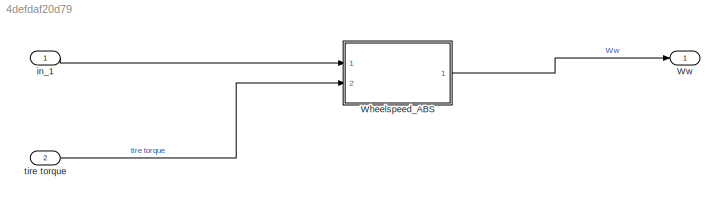
MODEL slx_4defdaf20d79
KIND model
CONFIG AbsTol = 1e-6
CONFIG EnableMultiTasking = off
CONFIG FixedStep = auto
CONFIG MaxStep = .01
CONFIG MinStep = auto
CONFIG RelTol = 1e-3
CONFIG SampleTimeConstraint = Unconstrained
CONFIG SolverName = ode45
CONFIG StartTime = 0.0
CONFIG StopTime = 25
WORKSPACE source: mxarray member
WORKSPACE I = 5
WORKSPACE Kf = 1
WORKSPACE PBmax = 1500
WORKSPACE Rr = 1.25
WORKSPACE TB = 0.01
WORKSPACE v0 = 88
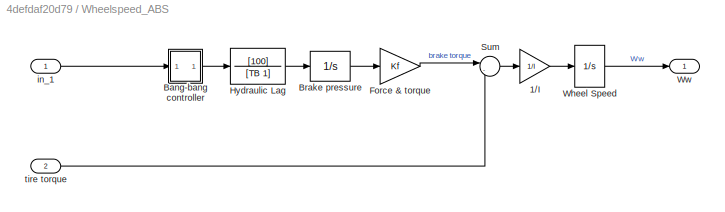
BLOCK [SubSystem] Wheelspeed_ABS
  Ports = [2, 1]
  RequestExecContextInheritance = off
BLOCK [Gain] Wheelspeed_ABS/1//I
  Gain = 1/I
  OutDataTypeStr = Inherit: Same as input
  ParamDataTypeStr = Inherit: Same as input
  SaturateOnIntegerOverflow = on
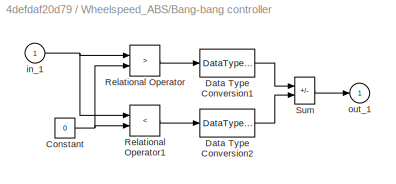
BLOCK [SubSystem] Wheelspeed_ABS/Bang-bang controller
  Ports = [1, 1]
  RequestExecContextInheritance = off
  ShowPortLabels = none
BLOCK [Constant] Wheelspeed_ABS/Bang-bang controller/Constant
  Value = 0
BLOCK [DataTypeConversion] Wheelspeed_ABS/Bang-bang controller/Data Type Conversion1
  OutDataTypeStr = double
BLOCK [DataTypeConversion] Wheelspeed_ABS/Bang-bang controller/Data Type Conversion2
  OutDataTypeStr = double
BLOCK [RelationalOperator] Wheelspeed_ABS/Bang-bang controller/Relational Operator
  Operator = >
  OutDataTypeStr = boolean
  Ports = [2, 1]
BLOCK [RelationalOperator] Wheelspeed_ABS/Bang-bang controller/Relational Operator1
  Operator = <
  OutDataTypeStr = boolean
  Ports = [2, 1]
BLOCK [Sum] Wheelspeed_ABS/Bang-bang controller/Sum
  IconShape = rectangular
  InputSameDT = on
  Inputs = +-
  OutDataTypeStr = Inherit: Same as first input
  Ports = [2, 1]
  SaturateOnIntegerOverflow = on
BLOCK [Inport] Wheelspeed_ABS/Bang-bang controller/in_1
BLOCK [Outport] Wheelspeed_ABS/Bang-bang controller/out_1
  InitialOutput = 0
  VectorParamsAs1DForOutWhenUnconnected = off
BLOCK [Integrator] Wheelspeed_ABS/Brake pressure
  LimitOutput = on
  LowerSaturationLimit = 0
  Ports = [1, 1]
  UpperSaturationLimit = PBmax
BLOCK [Gain] Wheelspeed_ABS/Force & torque
  Gain = Kf
  OutDataTypeStr = Inherit: Same as input
  ParamDataTypeStr = Inherit: Same as input
  SaturateOnIntegerOverflow = on
BLOCK [TransferFcn] Wheelspeed_ABS/Hydraulic Lag 
  Denominator = [TB 1]
  Numerator = [100]
BLOCK [Sum] Wheelspeed_ABS/Sum
  InputSameDT = on
  Inputs = |-+
  OutDataTypeStr = Inherit: Same as first input
  Ports = [2, 1]
  SaturateOnIntegerOverflow = on
BLOCK [Integrator] Wheelspeed_ABS/Wheel Speed
  InitialCondition = v0/Rr
  LimitOutput = on
  LowerSaturationLimit = 0
  Ports = [1, 1]
  UpperSaturationLimit = 1000
BLOCK [Outport] Wheelspeed_ABS/Ww
BLOCK [Inport] Wheelspeed_ABS/in_1
BLOCK [Inport] Wheelspeed_ABS/tire torque
  Port = 2
BLOCK [Outport] Ww
  OutDataTypeStr = double
  PortDimensions = 1
  SampleTime = 0
  SamplingMode = Sample based
  SignalType = real
BLOCK [Inport] in_1
  OutDataTypeStr = double
  PortDimensions = 1
  SampleTime = 0
  SamplingMode = Sample based
  SignalType = real
BLOCK [Inport] tire torque
  OutDataTypeStr = double
  Port = 2
  PortDimensions = 1
  SampleTime = 0
  SamplingMode = Sample based
  SignalType = real
LINE Wheelspeed_ABS/1//I:1 -> Wheelspeed_ABS/Wheel Speed:1
NET Wheelspeed_ABS/Bang-bang controller/Constant:1 -> Wheelspeed_ABS/Bang-bang controller/Relational Operator1:2, Wheelspeed_ABS/Bang-bang controller/Relational Operator:2
LINE Wheelspeed_ABS/Bang-bang controller/Data Type Conversion1:1 -> Wheelspeed_ABS/Bang-bang controller/Sum:1
LINE Wheelspeed_ABS/Bang-bang controller/Data Type Conversion2:1 -> Wheelspeed_ABS/Bang-bang controller/Sum:2
LINE Wheelspeed_ABS/Bang-bang controller/Relational Operator1:1 -> Wheelspeed_ABS/Bang-bang controller/Data Type Conversion2:1
LINE Wheelspeed_ABS/Bang-bang controller/Relational Operator:1 -> Wheelspeed_ABS/Bang-bang controller/Data Type Conversion1:1
LINE Wheelspeed_ABS/Bang-bang controller/Sum:1 -> Wheelspeed_ABS/Bang-bang controller/out_1:1
NET Wheelspeed_ABS/Bang-bang controller/in_1:1 -> Wheelspeed_ABS/Bang-bang controller/Relational Operator1:1, Wheelspeed_ABS/Bang-bang controller/Relational Operator:1
LINE Wheelspeed_ABS/Bang-bang controller:1 -> Wheelspeed_ABS/Hydraulic Lag :1
LINE Wheelspeed_ABS/Brake pressure:1 -> Wheelspeed_ABS/Force & torque:1
LINE Wheelspeed_ABS/Force & torque:1 -> Wheelspeed_ABS/Sum:1
LINE Wheelspeed_ABS/Hydraulic Lag :1 -> Wheelspeed_ABS/Brake pressure:1
LINE Wheelspeed_ABS/Sum:1 -> Wheelspeed_ABS/1//I:1
LINE Wheelspeed_ABS/Wheel Speed:1 -> Wheelspeed_ABS/Ww:1
LINE Wheelspeed_ABS/in_1:1 -> Wheelspeed_ABS/Bang-bang controller:1
LINE Wheelspeed_ABS/tire torque:1 -> Wheelspeed_ABS/Sum:2
LINE Wheelspeed_ABS:1 -> Ww:1
LINE in_1:1 -> Wheelspeed_ABS:1
LINE tire torque:1 -> Wheelspeed_ABS:2
note: NET lines group one-source signal fan-out (src -> all destinations, sorted); 1:1 wires keep LINE
